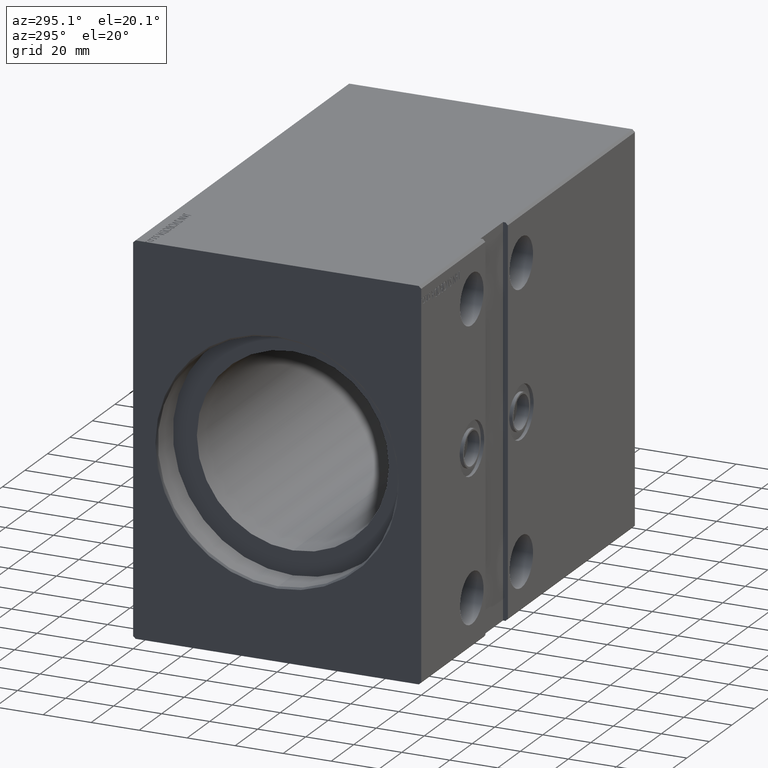
[diagram: clean part render]
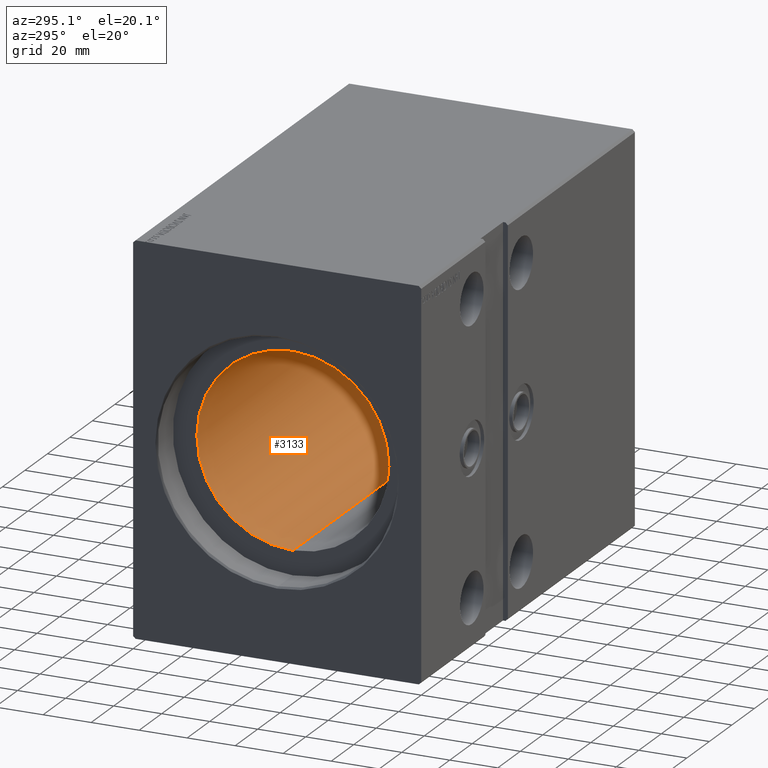
[diagram: same view with one face highlighted and labeled with its STEP entity id]
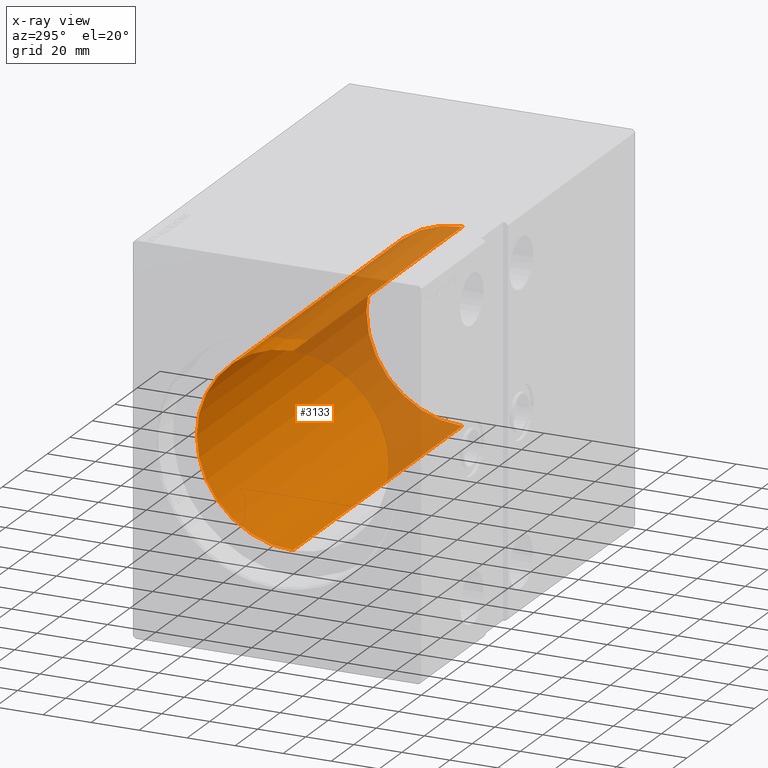
[diagram: x-ray of the same camera — body ghosted, the highlighted face saturated]
A machine part, auxiliary view. The second image highlights one B-rep face of the part: STEP entity #3133.
The next image is the same camera in x-ray: the body ghosted, the highlighted face saturated — about 31% of this face is hidden behind the body in this view.
In plain terms, the highlighted cylindrical surface (partial cylindrical patch) has radius 40 mm, axis along (-1, -0, -0).
Its self-contained STEP definition (entity closure, byte-faithful):
#123 = EDGE_CURVE ( 'NONE', #14791, #39137, #20886, .T. ) ;
#2292 = CARTESIAN_POINT ( 'NONE',  ( 164.6999999999999886, 0.000000000000000000, 40.00000000000000000 ) ) ;
#2359 = CARTESIAN_POINT ( 'NONE',  ( 164.6999999999999886, 0.000000000000000000, 0.000000000000000000 ) ) ;
#2501 = LINE ( 'NONE', #2292, #26263 ) ;
#3133 = ADVANCED_FACE ( 'NONE', ( #18513 ), #31476, .F. ) ;
#3182 = CARTESIAN_POINT ( 'NONE',  ( 14.00000000000001243, 0.000000000000000000, 0.000000000000000000 ) ) ;
#3211 = CARTESIAN_POINT ( 'NONE',  ( 164.6999999999999886, 0.000000000000000000, 40.00000000000000000 ) ) ;
#5696 = DIRECTION ( 'NONE',  ( 0.000000000000000000, 0.000000000000000000, 1.000000000000000000 ) ) ;
#7608 = ORIENTED_EDGE ( 'NONE', *, *, #11284, .T. ) ;
#9146 = DIRECTION ( 'NONE',  ( 0.000000000000000000, 0.000000000000000000, 1.000000000000000000 ) ) ;
#11179 = CARTESIAN_POINT ( 'NONE',  ( 14.00000000000001243, 0.000000000000000000, 40.00000000000000000 ) ) ;
#11256 = CARTESIAN_POINT ( 'NONE',  ( 164.6999999999999886, 4.898587196589412237E-15, -40.00000000000000000 ) ) ;
#11284 = EDGE_CURVE ( 'NONE', #25152, #33650, #2501, .T. ) ;
#13867 = CIRCLE ( 'NONE', #41683, 40.00000000000000000 ) ;
#14791 = VERTEX_POINT ( 'NONE', #11256 ) ;
#15159 = ORIENTED_EDGE ( 'NONE', *, *, #30769, .F. ) ;
#17732 = AXIS2_PLACEMENT_3D ( 'NONE', #2359, #26350, #29535 ) ;
#18513 = FACE_OUTER_BOUND ( 'NONE', #39400, .T. ) ;
#18657 = DIRECTION ( 'NONE',  ( -1.000000000000000000, -0.000000000000000000, -0.000000000000000000 ) ) ;
#19287 = DIRECTION ( 'NONE',  ( -1.000000000000000000, 0.000000000000000000, 0.000000000000000000 ) ) ;
#19410 = ORIENTED_EDGE ( 'NONE', *, *, #123, .F. ) ;
#20886 = LINE ( 'NONE', #36834, #23104 ) ;
#23104 = VECTOR ( 'NONE', #31080, 1000.000000000000000 ) ;
#25152 = VERTEX_POINT ( 'NONE', #3211 ) ;
#26263 = VECTOR ( 'NONE', #18657, 1000.000000000000000 ) ;
#26350 = DIRECTION ( 'NONE',  ( -1.000000000000000000, -0.000000000000000000, -0.000000000000000000 ) ) ;
#26817 = CIRCLE ( 'NONE', #34310, 40.00000000000000000 ) ;
#27147 = EDGE_CURVE ( 'NONE', #33650, #39137, #13867, .T. ) ;
#28199 = ORIENTED_EDGE ( 'NONE', *, *, #27147, .T. ) ;
#29443 = CARTESIAN_POINT ( 'NONE',  ( 14.00000000000001243, 4.898587196589412237E-15, -40.00000000000000000 ) ) ;
#29535 = DIRECTION ( 'NONE',  ( 0.000000000000000000, 0.000000000000000000, 1.000000000000000000 ) ) ;
#30769 = EDGE_CURVE ( 'NONE', #25152, #14791, #26817, .T. ) ;
#31080 = DIRECTION ( 'NONE',  ( -1.000000000000000000, -0.000000000000000000, -0.000000000000000000 ) ) ;
#31476 = CYLINDRICAL_SURFACE ( 'NONE', #17732, 40.00000000000000000 ) ;
#33650 = VERTEX_POINT ( 'NONE', #11179 ) ;
#34310 = AXIS2_PLACEMENT_3D ( 'NONE', #41620, #19287, #5696 ) ;
#36834 = CARTESIAN_POINT ( 'NONE',  ( 164.6999999999999886, 4.898587196589412237E-15, -40.00000000000000000 ) ) ;
#38897 = DIRECTION ( 'NONE',  ( -1.000000000000000000, 0.000000000000000000, 0.000000000000000000 ) ) ;
#39137 = VERTEX_POINT ( 'NONE', #29443 ) ;
#39400 = EDGE_LOOP ( 'NONE', ( #19410, #15159, #7608, #28199 ) ) ;
#41620 = CARTESIAN_POINT ( 'NONE',  ( 164.6999999999999886, 0.000000000000000000, 0.000000000000000000 ) ) ;
#41683 = AXIS2_PLACEMENT_3D ( 'NONE', #3182, #38897, #9146 ) ;